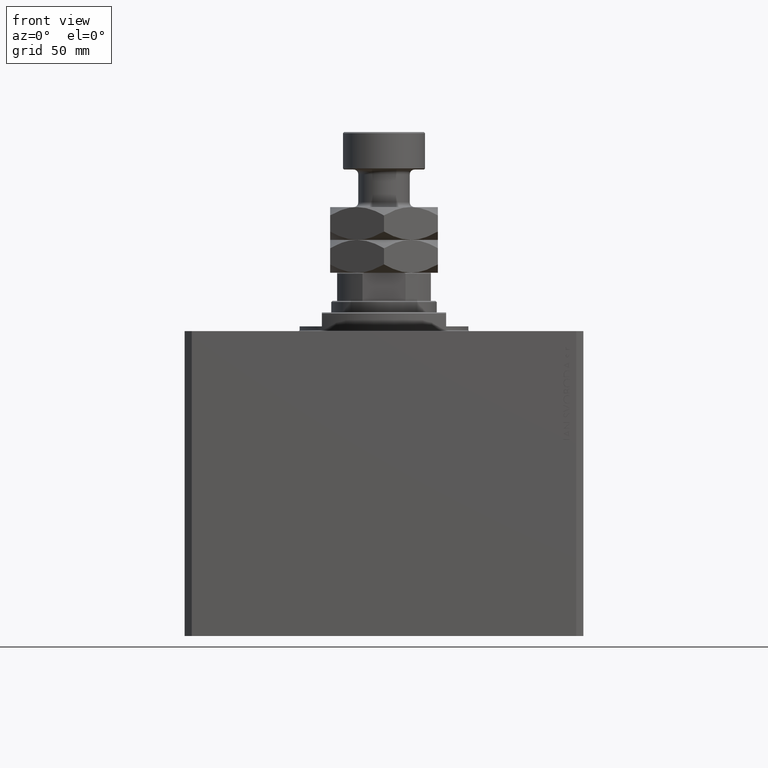
[diagram: clean part render]
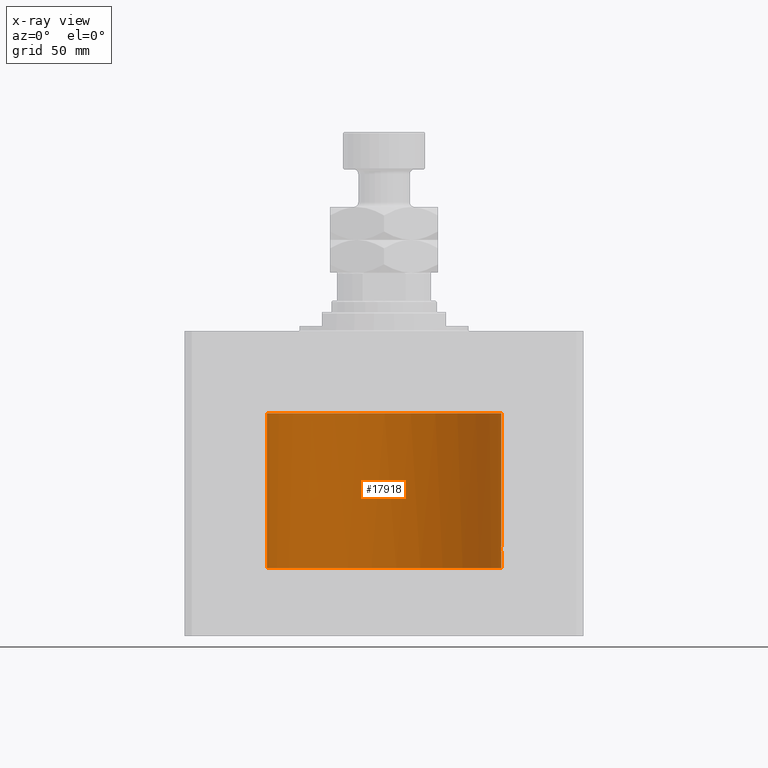
[diagram: x-ray — body ghosted, one internal face saturated and labeled with its STEP entity id]
A machine part, front view, then the same camera in x-ray: the body is ghosted and one INTERNAL B-rep face — a face not visible from any outside direction — is saturated and labeled: STEP entity #17918.
In plain terms, the highlighted cylindrical surface (partial cylindrical patch) has radius 50 mm, axis along (0, 0, 1).
Its self-contained STEP definition (entity closure, byte-faithful):
#209 = B_SPLINE_CURVE_WITH_KNOTS ( 'NONE', 3,
 ( #39451, #28291, #39200, #1786, #5774, #43405, #27547, #31268, #9473, #24573, #17135, #27799, #1035, #39934, #38947, #42660, #16649, #8982, #39694, #46366, #32260, #13426, #28544, #43649, #35232, #31518, #9711, #5017, #20104, #46620 ),
 .UNSPECIFIED., .F., .F.,
 ( 4, 2, 2, 2, 2, 2, 2, 2, 2, 2, 2, 2, 2, 2, 4 ),
 ( 0.000000000000000000, 0.0007026905982572669235, 0.001405381196514533847, 0.001756726495643167038, 0.002108071794771800012, 0.002459417093900433636, 0.002810762393029066393, 0.003162107692157699584, 0.003513452991286331907, 0.003864798290414965098, 0.004216143589543597421, 0.004567488888672231045, 0.004918834187800863803, 0.005270179486929496560, 0.005621524786058129317 ),
 .UNSPECIFIED. ) ;
#948 = DIRECTION ( 'NONE',  ( 0.000000000000000000, 0.000000000000000000, 1.000000000000000000 ) ) ;
#1035 = CARTESIAN_POINT ( 'NONE',  ( -49.96025037148059766, 1.993421940698851813, -37.20034917343377145 ) ) ;
#1393 = CYLINDRICAL_SURFACE ( 'NONE', #12112, 50.00000000000000000 ) ;
#1786 = CARTESIAN_POINT ( 'NONE',  ( -49.97993074948262660, 1.428636673189961126, -35.58044235009582934 ) ) ;
#1809 = CARTESIAN_POINT ( 'NONE',  ( 49.99947219664575471, 0.2630509640965526530, -91.01307477770996002 ) ) ;
#1900 = EDGE_CURVE ( 'NONE', #11529, #15479, #46093, .T. ) ;
#2459 = CIRCLE ( 'NONE', #34859, 50.00000000000000000 ) ;
#2553 = CARTESIAN_POINT ( 'NONE',  ( 50.00000000000000000, 0.1305077942112368161, -90.99999999999995737 ) ) ;
#3131 = CARTESIAN_POINT ( 'NONE',  ( -50.00000000000000000, 6.123233995736766085E-15, -101.0999999999999943 ) ) ;
#3298 = ORIENTED_EDGE ( 'NONE', *, *, #33711, .F. ) ;
#3489 = CARTESIAN_POINT ( 'NONE',  ( 49.99947616946592177, 0.2621653831979099958, -94.98702351732302418 ) ) ;
#4215 = CARTESIAN_POINT ( 'NONE',  ( 49.99598718814007015, 0.6449352407546056209, -94.89769711772643745 ) ) ;
#4479 = EDGE_CURVE ( 'NONE', #13676, #48604, #13899, .T. ) ;
#5017 = CARTESIAN_POINT ( 'NONE',  ( -49.99957753557384876, 0.2360531846322556082, -38.98951856427542850 ) ) ;
#5149 = VECTOR ( 'NONE', #15386, 1000.000000000000000 ) ;
#5549 = CARTESIAN_POINT ( 'NONE',  ( 49.96769480970100119, 1.797773714148178881, -92.11390000902665065 ) ) ;
#5774 = CARTESIAN_POINT ( 'NONE',  ( -49.97501996813913649, 1.585093815375989923, -35.75767530425597585 ) ) ;
#6684 = DIRECTION ( 'NONE',  ( -0.000000000000000000, -0.000000000000000000, 1.000000000000000000 ) ) ;
#7223 = CARTESIAN_POINT ( 'NONE',  ( 49.95998398718716516, 2.000000000000563549, -93.00000000000001421 ) ) ;
#7465 = CARTESIAN_POINT ( 'NONE',  ( 49.95998398718717226, 2.000000000000561773, -93.26098757528311012 ) ) ;
#8982 = CARTESIAN_POINT ( 'NONE',  ( -49.97160094710510236, 1.685948024779095222, -38.08231391555865741 ) ) ;
#9473 = CARTESIAN_POINT ( 'NONE',  ( -49.96236629883239999, 1.939709325673530049, -36.49855403535627119 ) ) ;
#9496 = CARTESIAN_POINT ( 'NONE',  ( 49.96251892914505532, 1.935809163618958051, -92.48063661859158913 ) ) ;
#9711 = CARTESIAN_POINT ( 'NONE',  ( -49.99794250191818890, 0.4682097998948923645, -38.94799507362157698 ) ) ;
#10247 = FACE_OUTER_BOUND ( 'NONE', #29054, .T. ) ;
#10377 = CARTESIAN_POINT ( 'NONE',  ( -49.99609984788813932, 0.6244997998398443828, -35.09999999999999432 ) ) ;
#10838 = VERTEX_POINT ( 'NONE', #11515 ) ;
#11232 = AXIS2_PLACEMENT_3D ( 'NONE', #12091, #948, #11850 ) ;
#11396 = CARTESIAN_POINT ( 'NONE',  ( 49.97475955401471026, 1.599209500590070165, -94.22908514075388098 ) ) ;
#11515 = CARTESIAN_POINT ( 'NONE',  ( 50.00000000000000000, -6.476745247090812175E-24, -91.00000000000001421 ) ) ;
#11529 = VERTEX_POINT ( 'NONE', #3131 ) ;
#11796 = VERTEX_POINT ( 'NONE', #32817 ) ;
#11850 = DIRECTION ( 'NONE',  ( 1.000000000000000000, 0.000000000000000000, 0.000000000000000000 ) ) ;
#12091 = CARTESIAN_POINT ( 'NONE',  ( 0.000000000000000000, 0.000000000000000000, -101.0999999999999943 ) ) ;
#12112 = AXIS2_PLACEMENT_3D ( 'NONE', #12794, #17438, #32568 ) ;
#12794 = CARTESIAN_POINT ( 'NONE',  ( 0.000000000000000000, 0.000000000000000000, -101.0999999999999943 ) ) ;
#12956 = CARTESIAN_POINT ( 'NONE',  ( 49.95998398718716516, 2.000000000000563549, -93.00000000000001421 ) ) ;
#13426 = CARTESIAN_POINT ( 'NONE',  ( -49.98548405603131073, 1.208045562783329085, -38.59825296903090930 ) ) ;
#13676 = VERTEX_POINT ( 'NONE', #14762 ) ;
#13835 = EDGE_CURVE ( 'NONE', #10838, #38157, #24407, .T. ) ;
#13899 = B_SPLINE_CURVE_WITH_KNOTS ( 'NONE', 3,
 ( #48807, #18577, #3489, #37908, #4215, #42106, #19305, #37664, #15117, #11396, #29996, #45335, #7465, #7223 ),
 .UNSPECIFIED., .F., .F.,
 ( 4, 2, 2, 2, 2, 2, 4 ),
 ( 4.436058941706983627E-20, 0.0003909348706788146445, 0.0007818697413576291807, 0.001172804612036443825, 0.001563739482715258361, 0.002345609224072888084, 0.003127478965430518024 ),
 .UNSPECIFIED. ) ;
#14484 = CARTESIAN_POINT ( 'NONE',  ( -50.00000000000000000, 6.123233779604962140E-15, -38.99999999999999289 ) ) ;
#14530 = ORIENTED_EDGE ( 'NONE', *, *, #45449, .T. ) ;
#14762 = CARTESIAN_POINT ( 'NONE',  ( 50.00000000000000000, 4.564789087886820642E-17, -95.00000000000001421 ) ) ;
#15117 = CARTESIAN_POINT ( 'NONE',  ( 49.98259270595343651, 1.322475809934057889, -94.50601728397791135 ) ) ;
#15386 = DIRECTION ( 'NONE',  ( -0.000000000000000000, -0.000000000000000000, 1.000000000000000000 ) ) ;
#15479 = VERTEX_POINT ( 'NONE', #14484 ) ;
#16315 = DIRECTION ( 'NONE',  ( 0.000000000000000000, 0.000000000000000000, 1.000000000000000000 ) ) ;
#16355 = CARTESIAN_POINT ( 'NONE',  ( 49.95998398718716516, 2.000000000000563549, -93.00000000000001421 ) ) ;
#16511 = B_SPLINE_CURVE_WITH_KNOTS ( 'NONE', 3,
 ( #12956, #28566, #27822, #9496, #20871, #5549, #43427, #20373, #25079, #31794, #28316, #43672, #39720, #32284, #36483, #1809, #2553, #24838 ),
 .UNSPECIFIED., .F., .F.,
 ( 4, 2, 2, 2, 2, 2, 2, 2, 4 ),
 ( 0.003127478965430518024, 0.003518236230679781373, 0.003908993495929044722, 0.004299750761178307637, 0.004690508026427571420, 0.005081265291676834335, 0.005472022556926097250, 0.005862779822175361033, 0.006253537087424623948 ),
 .UNSPECIFIED. ) ;
#16649 = CARTESIAN_POINT ( 'NONE',  ( -49.96758126801596944, 1.801150794128993704, -37.87731406627096931 ) ) ;
#17135 = CARTESIAN_POINT ( 'NONE',  ( -49.96008180170139923, 1.997556221810332433, -36.84661970003235609 ) ) ;
#17438 = DIRECTION ( 'NONE',  ( -0.000000000000000000, -0.000000000000000000, 1.000000000000000000 ) ) ;
#17918 = ADVANCED_FACE ( 'NONE', ( #10247 ), #1393, .F. ) ;
#18577 = CARTESIAN_POINT ( 'NONE',  ( 50.00000000000000711, 0.1321888607815029093, -95.00000000000005684 ) ) ;
#19193 = ORIENTED_EDGE ( 'NONE', *, *, #31245, .T. ) ;
#19305 = CARTESIAN_POINT ( 'NONE',  ( 49.99007528730422933, 1.002097354324908984, -94.73576910828040809 ) ) ;
#20017 = ORIENTED_EDGE ( 'NONE', *, *, #38801, .T. ) ;
#20104 = CARTESIAN_POINT ( 'NONE',  ( -50.00000000000000711, 0.1172245278669717811, -38.99999999999999289 ) ) ;
#20373 = CARTESIAN_POINT ( 'NONE',  ( 49.97475596784978080, 1.590287868744626465, -91.78017932967551928 ) ) ;
#20504 = ORIENTED_EDGE ( 'NONE', *, *, #48307, .T. ) ;
#20871 = CARTESIAN_POINT ( 'NONE',  ( 49.96398801900035380, 1.898003203340656198, -92.35599117910246036 ) ) ;
#21886 = CARTESIAN_POINT ( 'NONE',  ( 50.00000000000000000, 0.000000000000000000, -35.10000000000000142 ) ) ;
#24407 = LINE ( 'NONE', #46444, #41743 ) ;
#24573 = CARTESIAN_POINT ( 'NONE',  ( -49.96057893414056394, 1.985213089902070127, -36.73009388438973843 ) ) ;
#24838 = CARTESIAN_POINT ( 'NONE',  ( 50.00000000000000000, -6.476745247090812175E-24, -91.00000000000001421 ) ) ;
#25079 = CARTESIAN_POINT ( 'NONE',  ( 49.97735290927441554, 1.507618726120014019, -91.67920111852205878 ) ) ;
#27026 = CARTESIAN_POINT ( 'NONE',  ( -50.00000000000000000, 6.123233995736766085E-15, -101.0999999999999943 ) ) ;
#27547 = CARTESIAN_POINT ( 'NONE',  ( -49.96683064842586930, 1.821439728323795082, -36.16567923983517119 ) ) ;
#27799 = CARTESIAN_POINT ( 'NONE',  ( -49.95991227486435093, 2.001791692421229563, -37.08115661319126133 ) ) ;
#27822 = CARTESIAN_POINT ( 'NONE',  ( 49.96051123778291725, 1.986950357331387140, -92.73708610268799646 ) ) ;
#28291 = CARTESIAN_POINT ( 'NONE',  ( -49.99328053167040764, 0.8502081429981463989, -35.17418674480239815 ) ) ;
#28316 = CARTESIAN_POINT ( 'NONE',  ( 49.98523696312182096, 1.219762141829697999, -91.40967013674320185 ) ) ;
#28544 = CARTESIAN_POINT ( 'NONE',  ( -49.98772264100204410, 1.112610957917412158, -38.66611860276731960 ) ) ;
#28566 = CARTESIAN_POINT ( 'NONE',  ( 49.95998398718716516, 2.000000000000564881, -92.86956549692720841 ) ) ;
#29054 = EDGE_LOOP ( 'NONE', ( #47283, #3298, #20017, #34655, #20504, #46271, #19193, #14530 ) ) ;
#29225 = CARTESIAN_POINT ( 'NONE',  ( 50.00000000000000000, 0.000000000000000000, -101.0999999999999943 ) ) ;
#29996 = CARTESIAN_POINT ( 'NONE',  ( 49.96952841668770162, 1.748193601366643479, -94.00584708661953925 ) ) ;
#31245 = EDGE_CURVE ( 'NONE', #38157, #44888, #2459, .T. ) ;
#31268 = CARTESIAN_POINT ( 'NONE',  ( -49.96366067148841239, 1.906415494258318688, -36.38411545074576736 ) ) ;
#31518 = CARTESIAN_POINT ( 'NONE',  ( -49.99674241769260163, 0.5812628790054253924, -38.91726219079834692 ) ) ;
#31794 = CARTESIAN_POINT ( 'NONE',  ( 49.98263500888552358, 1.320952538904951457, -91.49251590435537196 ) ) ;
#32260 = CARTESIAN_POINT ( 'NONE',  ( -49.98084510722092944, 1.386763413674867218, -38.44591627325701211 ) ) ;
#32284 = CARTESIAN_POINT ( 'NONE',  ( 49.99599990398858296, 0.6439560014968555013, -91.10196939152021400 ) ) ;
#32568 = DIRECTION ( 'NONE',  ( 1.000000000000000000, 0.000000000000000000, 0.000000000000000000 ) ) ;
#32626 = CIRCLE ( 'NONE', #11232, 50.00000000000000000 ) ;
#32817 = CARTESIAN_POINT ( 'NONE',  ( 50.00000000000000000, 0.000000000000000000, -101.0999999999999943 ) ) ;
#33191 = LINE ( 'NONE', #29225, #33266 ) ;
#33266 = VECTOR ( 'NONE', #6684, 1000.000000000000000 ) ;
#33711 = EDGE_CURVE ( 'NONE', #11796, #11529, #32626, .T. ) ;
#34655 = ORIENTED_EDGE ( 'NONE', *, *, #4479, .T. ) ;
#34859 = AXIS2_PLACEMENT_3D ( 'NONE', #43078, #16315, #42833 ) ;
#35232 = CARTESIAN_POINT ( 'NONE',  ( -49.99369815244034498, 0.8014137247986814483, -38.83616363227216794 ) ) ;
#35310 = DIRECTION ( 'NONE',  ( -0.000000000000000000, -0.000000000000000000, 1.000000000000000000 ) ) ;
#36483 = CARTESIAN_POINT ( 'NONE',  ( 49.99746746122490038, 0.5192910711913449884, -91.06417861566059457 ) ) ;
#37664 = CARTESIAN_POINT ( 'NONE',  ( 49.98524326844813004, 1.219541607305973274, -94.59053820226215237 ) ) ;
#37908 = CARTESIAN_POINT ( 'NONE',  ( 49.99748146545036320, 0.5178754880116728243, -94.93618132556299827 ) ) ;
#38157 = VERTEX_POINT ( 'NONE', #21886 ) ;
#38801 = EDGE_CURVE ( 'NONE', #11796, #13676, #33191, .T. ) ;
#38947 = CARTESIAN_POINT ( 'NONE',  ( -49.96284986351769675, 1.927465837588734576, -37.54649553614981983 ) ) ;
#39200 = CARTESIAN_POINT ( 'NONE',  ( -49.98916325126266713, 1.057373115637954442, -35.28590876563971079 ) ) ;
#39451 = CARTESIAN_POINT ( 'NONE',  ( -49.99609984788813932, 0.6244997998398443828, -35.09999999999999432 ) ) ;
#39694 = CARTESIAN_POINT ( 'NONE',  ( -49.97381024033256836, 1.619834269595411547, -38.17896137017439884 ) ) ;
#39720 = CARTESIAN_POINT ( 'NONE',  ( 49.99229103891970993, 0.8862970221311291530, -91.20231340018574429 ) ) ;
#39934 = CARTESIAN_POINT ( 'NONE',  ( -49.96172438467755228, 1.956130037651736764, -37.43292736198093706 ) ) ;
#41743 = VECTOR ( 'NONE', #35310, 1000.000000000000000 ) ;
#42106 = CARTESIAN_POINT ( 'NONE',  ( 49.99227494580978259, 0.8871990329080465809, -94.79724057694060946 ) ) ;
#42660 = CARTESIAN_POINT ( 'NONE',  ( -49.96576734963498723, 1.850293004264653485, -37.76824327167415873 ) ) ;
#42833 = DIRECTION ( 'NONE',  ( 1.000000000000000000, 0.000000000000000000, 0.000000000000000000 ) ) ;
#43078 = CARTESIAN_POINT ( 'NONE',  ( 0.000000000000000000, 0.000000000000000000, -35.10000000000000142 ) ) ;
#43405 = CARTESIAN_POINT ( 'NONE',  ( -49.96871419250738455, 1.769572759842160004, -36.06053977682700662 ) ) ;
#43427 = CARTESIAN_POINT ( 'NONE',  ( 49.96993720661966876, 1.735115303979041013, -91.99682860132226381 ) ) ;
#43649 = CARTESIAN_POINT ( 'NONE',  ( -49.99183065344801236, 0.9094976054947803146, -38.78512421073842376 ) ) ;
#43672 = CARTESIAN_POINT ( 'NONE',  ( 49.99005286890574951, 1.003169031662882960, -91.26488598342365322 ) ) ;
#44888 = VERTEX_POINT ( 'NONE', #10377 ) ;
#45335 = CARTESIAN_POINT ( 'NONE',  ( 49.96215500645249818, 1.947567242801464760, -93.52430054767012280 ) ) ;
#45449 = EDGE_CURVE ( 'NONE', #44888, #15479, #209, .T. ) ;
#46093 = LINE ( 'NONE', #27026, #5149 ) ;
#46271 = ORIENTED_EDGE ( 'NONE', *, *, #13835, .T. ) ;
#46366 = CARTESIAN_POINT ( 'NONE',  ( -49.97842441486788090, 1.470600559315722089, -38.36056861946006791 ) ) ;
#46444 = CARTESIAN_POINT ( 'NONE',  ( 50.00000000000000000, 0.000000000000000000, -101.0999999999999943 ) ) ;
#46620 = CARTESIAN_POINT ( 'NONE',  ( -50.00000000000000000, 6.123233779604962140E-15, -38.99999999999999289 ) ) ;
#47283 = ORIENTED_EDGE ( 'NONE', *, *, #1900, .F. ) ;
#48307 = EDGE_CURVE ( 'NONE', #48604, #10838, #16511, .T. ) ;
#48604 = VERTEX_POINT ( 'NONE', #16355 ) ;
#48807 = CARTESIAN_POINT ( 'NONE',  ( 50.00000000000000000, 4.564789087886820642E-17, -95.00000000000001421 ) ) ;